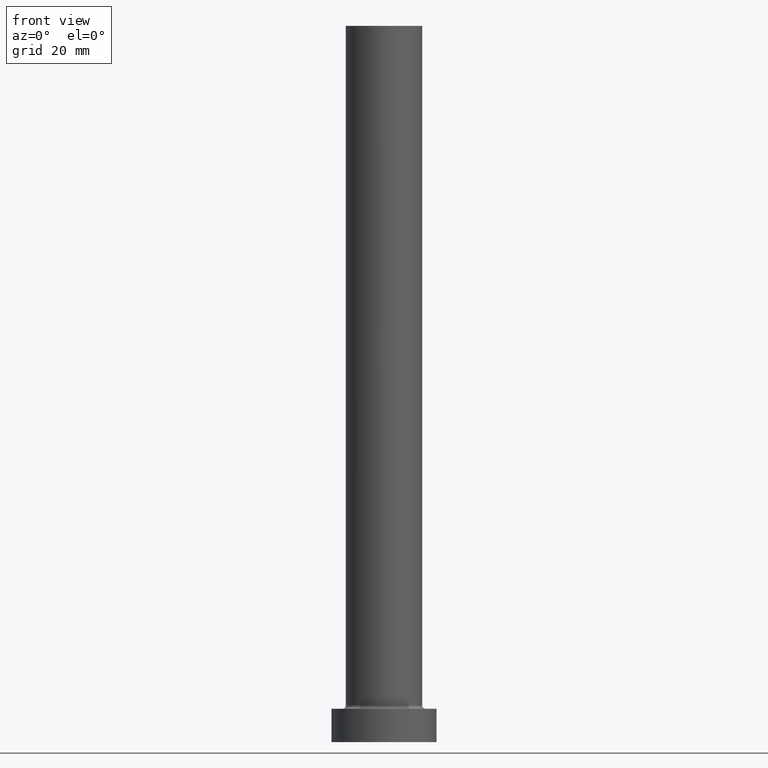
[diagram: clean part render]
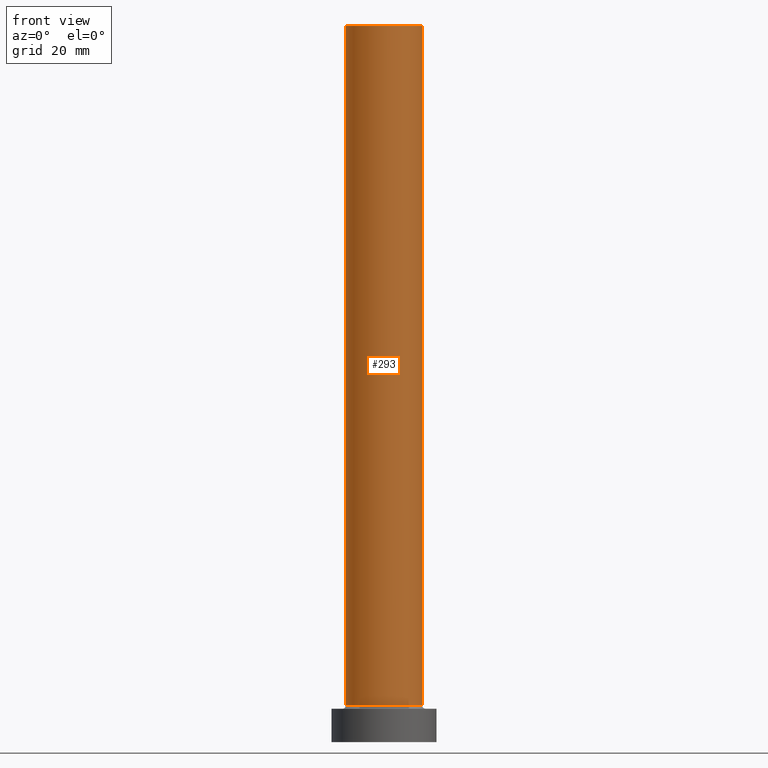
[diagram: same view with one face highlighted and labeled with its STEP entity id]
A machine part, front view. The second image highlights one B-rep face of the part: STEP entity #293.
In plain terms, the highlighted cylindrical surface (partial cylindrical patch) has radius 8 mm, axis along (-0, -0, -1).
Its self-contained STEP definition (entity closure, byte-faithful):
#8 = VERTEX_POINT ( 'NONE', #444 ) ;
#17 = EDGE_CURVE ( 'NONE', #146, #321, #232, .T. ) ;
#62 = ORIENTED_EDGE ( 'NONE', *, *, #231, .F. ) ;
#63 = DIRECTION ( 'NONE',  ( 1.000000000000000000, 0.000000000000000000, 0.000000000000000000 ) ) ;
#67 = EDGE_CURVE ( 'NONE', #321, #227, #218, .T. ) ;
#76 = DIRECTION ( 'NONE',  ( -1.000000000000000000, 0.000000000000000000, 0.000000000000000000 ) ) ;
#78 = DIRECTION ( 'NONE',  ( 0.000000000000000000, 0.000000000000000000, 1.000000000000000000 ) ) ;
#79 = EDGE_LOOP ( 'NONE', ( #403, #62, #99, #383 ) ) ;
#99 = ORIENTED_EDGE ( 'NONE', *, *, #17, .T. ) ;
#112 = FACE_OUTER_BOUND ( 'NONE', #79, .T. ) ;
#121 = DIRECTION ( 'NONE',  ( -0.000000000000000000, -0.000000000000000000, -1.000000000000000000 ) ) ;
#140 = CARTESIAN_POINT ( 'NONE',  ( 0.000000000000000000, 0.000000000000000000, 150.0000000000000000 ) ) ;
#146 = VERTEX_POINT ( 'NONE', #269 ) ;
#157 = DIRECTION ( 'NONE',  ( 1.000000000000000000, 0.000000000000000000, 0.000000000000000000 ) ) ;
#207 = VECTOR ( 'NONE', #121, 1000.000000000000000 ) ;
#218 = CIRCLE ( 'NONE', #384, 8.000000000000000000 ) ;
#227 = VERTEX_POINT ( 'NONE', #424 ) ;
#231 = EDGE_CURVE ( 'NONE', #146, #8, #410, .T. ) ;
#232 = LINE ( 'NONE', #369, #207 ) ;
#244 = CARTESIAN_POINT ( 'NONE',  ( 0.000000000000000000, 0.000000000000000000, 150.0000000000000000 ) ) ;
#253 = CYLINDRICAL_SURFACE ( 'NONE', #366, 8.000000000000000000 ) ;
#255 = VECTOR ( 'NONE', #394, 1000.000000000000000 ) ;
#260 = CARTESIAN_POINT ( 'NONE',  ( 0.000000000000000000, 0.000000000000000000, 7.700000000000012612 ) ) ;
#269 = CARTESIAN_POINT ( 'NONE',  ( -8.000000000000000000, 0.000000000000000000, 150.0000000000000000 ) ) ;
#285 = DIRECTION ( 'NONE',  ( -0.000000000000000000, -0.000000000000000000, -1.000000000000000000 ) ) ;
#288 = EDGE_CURVE ( 'NONE', #8, #227, #359, .T. ) ;
#293 = ADVANCED_FACE ( 'NONE', ( #112 ), #253, .T. ) ;
#321 = VERTEX_POINT ( 'NONE', #398 ) ;
#325 = CARTESIAN_POINT ( 'NONE',  ( 8.000000000000000000, 9.797174393178825657E-16, 150.0000000000000000 ) ) ;
#337 = AXIS2_PLACEMENT_3D ( 'NONE', #244, #388, #63 ) ;
#359 = LINE ( 'NONE', #325, #255 ) ;
#366 = AXIS2_PLACEMENT_3D ( 'NONE', #140, #285, #76 ) ;
#369 = CARTESIAN_POINT ( 'NONE',  ( -8.000000000000000000, 0.000000000000000000, 150.0000000000000000 ) ) ;
#383 = ORIENTED_EDGE ( 'NONE', *, *, #67, .T. ) ;
#384 = AXIS2_PLACEMENT_3D ( 'NONE', #260, #78, #157 ) ;
#388 = DIRECTION ( 'NONE',  ( 0.000000000000000000, 0.000000000000000000, 1.000000000000000000 ) ) ;
#394 = DIRECTION ( 'NONE',  ( -0.000000000000000000, -0.000000000000000000, -1.000000000000000000 ) ) ;
#398 = CARTESIAN_POINT ( 'NONE',  ( -8.000000000000000000, 0.000000000000000000, 7.700000000000012612 ) ) ;
#403 = ORIENTED_EDGE ( 'NONE', *, *, #288, .F. ) ;
#410 = CIRCLE ( 'NONE', #337, 8.000000000000000000 ) ;
#424 = CARTESIAN_POINT ( 'NONE',  ( 8.000000000000000000, 9.797174393178825657E-16, 7.700000000000012612 ) ) ;
#444 = CARTESIAN_POINT ( 'NONE',  ( 8.000000000000000000, 9.797174393178825657E-16, 150.0000000000000000 ) ) ;